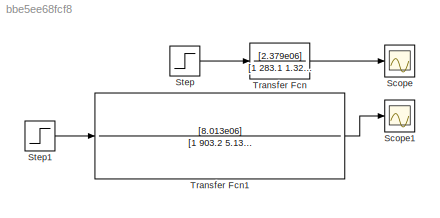
MODEL slx_bbe5ee68fcf8
KIND model
CONFIG AbsTol = auto
CONFIG EnableMultiTasking = off
CONFIG FixedStep = auto
CONFIG MaxStep = auto
CONFIG MinStep = auto
CONFIG RelTol = 1e-3
CONFIG SampleTimeConstraint = Unconstrained
CONFIG SolverName = VariableStepAuto
CONFIG StartTime = 0.0
CONFIG StopTime = 10.0
BLOCK [Scope] Scope
  Floating = off
  NumInputPorts = 1
  ScopeSpecificationString = Simulink.scopes.TimeScopeBlockCfg('CurrentConfiguration', extmgr.ConfigurationSet(extmgr.Configuration('Core','General UI',true),extmgr.Configuration('Core','Source UI',true),extmgr.Configuration('Sources','WiredSimulink',true),extmgr.Configuration('Visuals','Time Domain',true,'SerializedDisplays',{struct('MinYLimReal','33.72401','MaxYLimReal','145.50228','YLabelReal','','MinYLimMag','33.72401','M...<+1480ch>
BLOCK [Scope] Scope1
  Floating = off
  NumInputPorts = 1
  ScopeSpecificationString = Simulink.scopes.TimeScopeBlockCfg('CurrentConfiguration', extmgr.ConfigurationSet(extmgr.Configuration('Core','General UI',true),extmgr.Configuration('Core','Source UI',true),extmgr.Configuration('Sources','WiredSimulink',true,'DataLoggingVariableName','ScopeData1'),extmgr.Configuration('Visuals','Time Domain',true,'SerializedDisplays',{struct('MinYLimReal','65.45085','MaxYLimReal','69.44307','YLa...<+1542ch>
BLOCK [Step] Step
  After = 5
  SampleTime = 0
  Time = 0
BLOCK [Step] Step1
  After = 6
  SampleTime = 0
  Time = 0
BLOCK [TransferFcn] Transfer Fcn
  Denominator = [1 283.1 1.329e04 8.968e04]
  Numerator = [2.379e06]
BLOCK [TransferFcn] Transfer Fcn1
  Denominator = [1 903.2 5.134e04 7.15e05]
  Numerator = [8.013e06]
LINE Step1:1 -> Transfer Fcn1:1
LINE Step:1 -> Transfer Fcn:1
LINE Transfer Fcn1:1 -> Scope1:1
LINE Transfer Fcn:1 -> Scope:1
